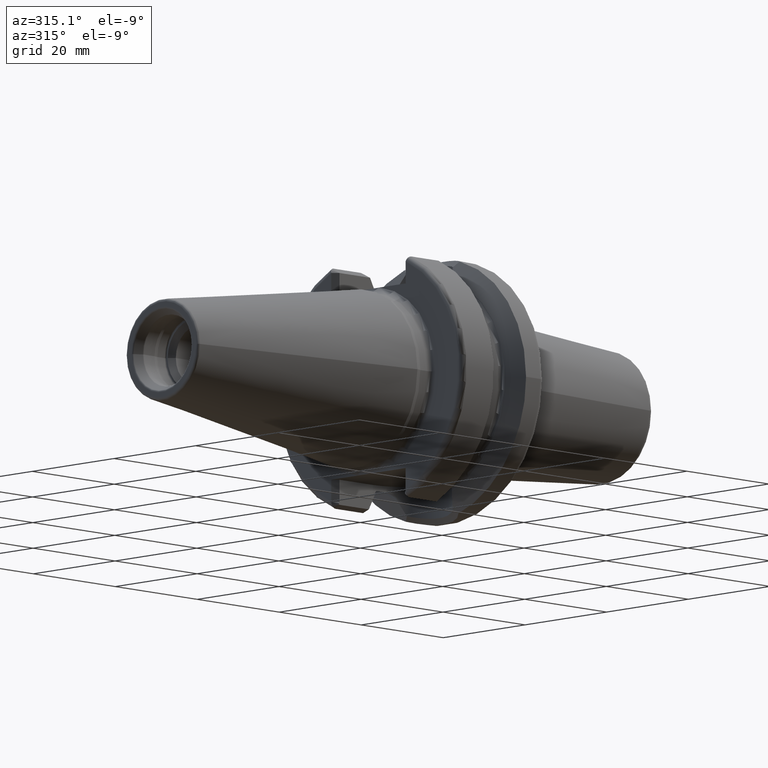
[diagram: clean part render]
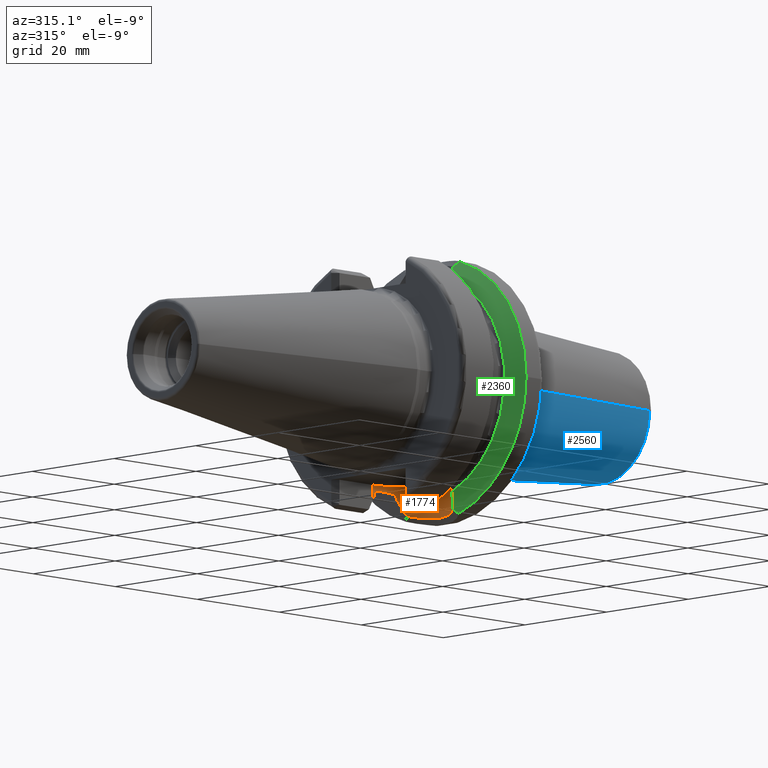
[diagram: same view with three faces highlighted in distinct colors, each labeled with its STEP entity id]
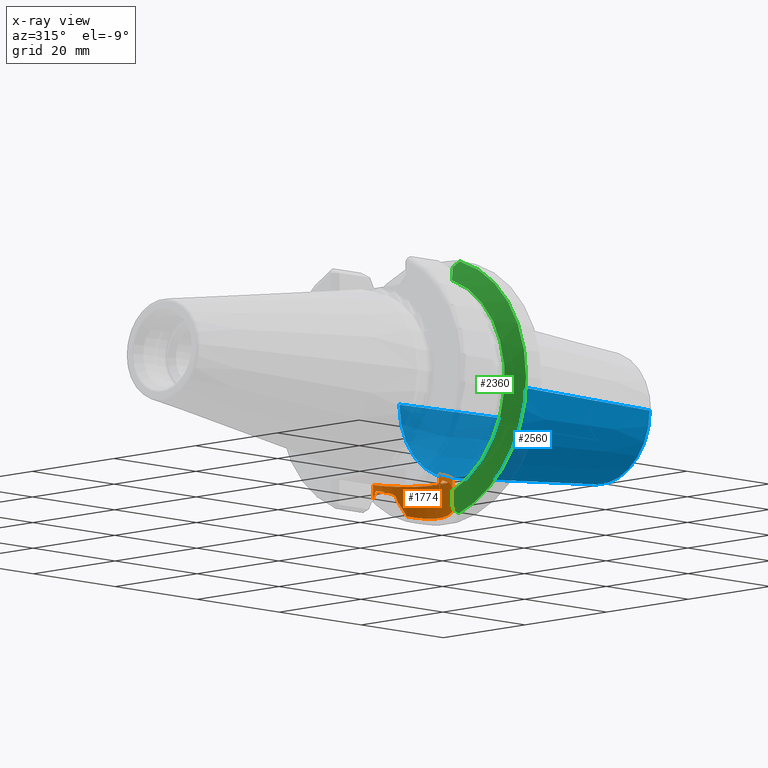
[diagram: x-ray of the same camera — body ghosted, the three highlighted faces saturated]
A machine part, auxiliary view with three faces highlighted in distinct colors.
The next image is the same camera in x-ray (body ghosted, the three faces saturated) — at least one of them is partly hidden behind the body in this view.
Their STEP definitions:

[orange] entity #1774 — the highlighted cylindrical surface (partial cylindrical patch) has radius 8.095 mm, axis along (0, 0, 1).
#155=CARTESIAN_POINT('',(1.1155E1,8.095E0,-1.870865212813E1));
#176=DIRECTION('',(-1.110807878800E-14,0.E0,-1.E0));
#177=VECTOR('',#176,2.558652128134E0);
#178=CARTESIAN_POINT('',(1.1155E1,8.095E0,-1.615E1));
#179=LINE('',#178,#177);
#272=CARTESIAN_POINT('',(1.1155E1,-8.095E0,-1.870865212813E1));
#297=DIRECTION('',(0.E0,6.173861792538E-14,1.E0));
#298=VECTOR('',#297,5.754443164074E-2);
#299=CARTESIAN_POINT('',(1.56375E1,-6.740639342822E0,-1.848861619239E1));
#300=LINE('',#299,#298);
#301=CARTESIAN_POINT('',(1.698654743284E1,-5.614452737227E0,-2.128773692951E1));
#302=CARTESIAN_POINT('',(1.685107103184E1,-5.755167619944E0,-2.100794867350E1));
#303=CARTESIAN_POINT('',(1.657018228212E1,-6.026536433094E0,-2.042717096589E1));
#304=CARTESIAN_POINT('',(1.612019321532E1,-6.402407747302E0,-1.949400229719E1));
#305=CARTESIAN_POINT('',(1.580140145437E1,-6.631645487516E0,-1.883051788112E1));
#306=CARTESIAN_POINT('',(1.56375E1,-6.740639342822E0,-1.848861619239E1));
#308=CARTESIAN_POINT('',(1.698654743284E1,-5.614452737227E0,-2.128773692951E1));
#309=CARTESIAN_POINT('',(1.725063743228E1,-5.340108090401E0,-2.135595013368E1));
#310=CARTESIAN_POINT('',(1.782443049317E1,-4.652101554192E0,-2.151555315723E1));
#311=CARTESIAN_POINT('',(1.852164438686E1,-3.464120722762E0,-2.173526750935E1));
#312=CARTESIAN_POINT('',(1.902310807991E1,-2.080071241475E0,-2.190797775080E1));
#313=CARTESIAN_POINT('',(1.926340365381E1,-6.646500112214E-1,
-2.199483960539E1));
#314=CARTESIAN_POINT('',(1.925769142436E1,7.314785348788E-1,-2.199274443856E1));
#315=CARTESIAN_POINT('',(1.900545430163E1,2.146048848966E0,-2.190170086664E1));
#316=CARTESIAN_POINT('',(1.849176503537E1,3.527222211652E0,-2.172534672513E1));
#317=CARTESIAN_POINT('',(1.779530800371E1,4.690623287524E0,-2.150701760566E1));
#318=CARTESIAN_POINT('',(1.723372138363E1,5.357667346746E0,-2.135159936151E1));
#319=CARTESIAN_POINT('',(1.698655422750E1,5.614445679829E0,-2.128775096196E1));
#321=CARTESIAN_POINT('',(1.56375E1,6.740639342822E0,-1.848861619239E1));
#322=CARTESIAN_POINT('',(1.580141693669E1,6.631635191826E0,-1.883055017756E1));
#323=CARTESIAN_POINT('',(1.612022880799E1,6.402379286160E0,-1.949407617939E1));
#324=CARTESIAN_POINT('',(1.657016835682E1,6.026547681230E0,-2.042714206942E1));
#325=CARTESIAN_POINT('',(1.685106915981E1,5.755169905209E0,-2.100794481881E1));
#326=CARTESIAN_POINT('',(1.698655422750E1,5.614445679829E0,-2.128775096196E1));
#328=DIRECTION('',(0.E0,3.086930896270E-14,1.E0));
#329=VECTOR('',#328,5.754443164072E-2);
#330=CARTESIAN_POINT('',(1.56375E1,6.740639342822E0,-1.848861619239E1));
#331=LINE('',#330,#329);
#332=CARTESIAN_POINT('',(1.48875E1,7.183137806697E0,-1.745474595203E1));
#333=CARTESIAN_POINT('',(1.497069018136E1,7.139910548601E0,-1.747253523139E1));
#334=CARTESIAN_POINT('',(1.512704810528E1,7.055150292263E0,-1.753488060805E1));
#335=CARTESIAN_POINT('',(1.534731396602E1,6.926140003427E0,-1.771001150802E1));
#336=CARTESIAN_POINT('',(1.551373210350E1,6.821933350112E0,-1.793618747596E1));
#337=CARTESIAN_POINT('',(1.561720305768E1,6.754232932078E0,-1.819382523887E1));
#338=CARTESIAN_POINT('',(1.56375E1,6.740639342822E0,-1.835229604119E1));
#339=CARTESIAN_POINT('',(1.56375E1,6.740639342822E0,-1.843107176075E1));
#341=CARTESIAN_POINT('',(1.15625E1,8.084736776791E0,-1.788232804335E1));
#342=CARTESIAN_POINT('',(1.15625E1,8.084736776791E0,-1.781359730062E1));
#343=CARTESIAN_POINT('',(1.157743606483E1,8.084008713788E0,-1.768050385507E1));
#344=CARTESIAN_POINT('',(1.164702451808E1,8.080196327678E0,-1.748544180816E1));
#345=CARTESIAN_POINT('',(1.175695528065E1,8.072931861565E0,-1.732053584298E1));
#346=CARTESIAN_POINT('',(1.190535493158E1,8.060719513235E0,-1.718877876759E1));
#347=CARTESIAN_POINT('',(1.208874148617E1,8.041810725138E0,-1.710274000837E1));
#348=CARTESIAN_POINT('',(1.223427404262E1,8.023119067298E0,-1.708494487053E1));
#349=CARTESIAN_POINT('',(1.23125E1,8.011817443627E0,-1.709024301319E1));
#351=DIRECTION('',(0.E0,5.990629765648E-14,1.E0));
#352=VECTOR('',#351,5.930451084080E-2);
#353=CARTESIAN_POINT('',(1.15625E1,8.084736776791E0,-1.794163255419E1));
#354=LINE('',#353,#352);
#355=CARTESIAN_POINT('',(1.1155E1,8.095E0,-1.870865212813E1));
#356=CARTESIAN_POINT('',(1.122320683725E1,8.095E0,-1.857992980697E1));
#357=CARTESIAN_POINT('',(1.135933197530E1,8.093276167010E0,-1.832335661175E1));
#358=CARTESIAN_POINT('',(1.149487499855E1,8.088145321664E0,-1.806856911534E1));
#359=CARTESIAN_POINT('',(1.15625E1,8.084736776791E0,-1.794163255419E1));
#361=DIRECTION('',(0.E0,0.E0,-1.E0));
#362=VECTOR('',#361,2.558652128134E0);
#363=CARTESIAN_POINT('',(1.1155E1,-8.095E0,-1.615E1));
#364=LINE('',#363,#362);
#365=CARTESIAN_POINT('',(1.15625E1,-8.084736776791E0,-1.794163255419E1));
#366=CARTESIAN_POINT('',(1.149487170181E1,-8.088145487832E0,-1.806857530355E1));
#367=CARTESIAN_POINT('',(1.135932539469E1,-8.093276332983E0,-1.832336899895E1));
#368=CARTESIAN_POINT('',(1.122320355344E1,-8.095E0,-1.857993600428E1));
#369=CARTESIAN_POINT('',(1.1155E1,-8.095E0,-1.870865212813E1));
#371=DIRECTION('',(0.E0,0.E0,1.E0));
#372=VECTOR('',#371,5.930451084078E-2);
#373=CARTESIAN_POINT('',(1.15625E1,-8.084736776791E0,-1.794163255419E1));
#374=LINE('',#373,#372);
#375=CARTESIAN_POINT('',(1.23125E1,-8.011817443627E0,-1.709024301319E1));
#376=CARTESIAN_POINT('',(1.223412033661E1,-8.023141273833E0,-1.708493446022E1));
#377=CARTESIAN_POINT('',(1.208831797670E1,-8.041863754075E0,-1.710280413489E1));
#378=CARTESIAN_POINT('',(1.190448533030E1,-8.060802307436E0,-1.718929563694E1));
#379=CARTESIAN_POINT('',(1.175607673362E1,-8.072995940587E0,-1.732154273478E1));
#380=CARTESIAN_POINT('',(1.164652640216E1,-8.080224902242E0,-1.748652481923E1));
#381=CARTESIAN_POINT('',(1.157735932460E1,-8.084012208743E0,-1.768105664530E1));
#382=CARTESIAN_POINT('',(1.15625E1,-8.084736776791E0,-1.781380327923E1));
#383=CARTESIAN_POINT('',(1.15625E1,-8.084736776791E0,-1.788232804335E1));
#385=CARTESIAN_POINT('',(1.56375E1,-6.740639342822E0,-1.843107176075E1));
#386=CARTESIAN_POINT('',(1.56375E1,-6.740639342822E0,-1.835223565973E1));
#387=CARTESIAN_POINT('',(1.561716943487E1,-6.754255410016E0,-1.819368091113E1));
#388=CARTESIAN_POINT('',(1.551365732971E1,-6.821981327071E0,-1.793606136907E1));
#389=CARTESIAN_POINT('',(1.534724837083E1,-6.926179270024E0,-1.770995100299E1));
#390=CARTESIAN_POINT('',(1.512702377767E1,-7.055163449183E0,-1.753487145852E1));
#391=CARTESIAN_POINT('',(1.497068250850E1,-7.139914535566E0,-1.747253359064E1));
#392=CARTESIAN_POINT('',(1.48875E1,-7.183137806697E0,-1.745474595203E1));
#419=CARTESIAN_POINT('',(1.23125E1,8.011817443627E0,-1.709024301319E1));
#420=CARTESIAN_POINT('',(1.260448853217E1,7.969632667405E0,-1.711001901788E1));
#421=CARTESIAN_POINT('',(1.318480954598E1,7.853460451226E0,-1.716416337693E1));
#422=CARTESIAN_POINT('',(1.404920492439E1,7.578313334037E0,-1.728803651447E1));
#423=CARTESIAN_POINT('',(1.461036501125E1,7.327142609799E0,-1.739548376922E1));
#424=CARTESIAN_POINT('',(1.48875E1,7.183137806697E0,-1.745474595203E1));
#433=CARTESIAN_POINT('',(1.48875E1,-7.183137806697E0,-1.745474595203E1));
#434=CARTESIAN_POINT('',(1.461036501125E1,-7.327142609799E0,-1.739548376922E1));
#435=CARTESIAN_POINT('',(1.404920492439E1,-7.578313334037E0,-1.728803651447E1));
#436=CARTESIAN_POINT('',(1.318480954598E1,-7.853460451226E0,-1.716416337693E1));
#437=CARTESIAN_POINT('',(1.260448853217E1,-7.969632667405E0,-1.711001901788E1));
#438=CARTESIAN_POINT('',(1.23125E1,-8.011817443627E0,-1.709024301319E1));
#744=CARTESIAN_POINT('',(1.1155E1,0.E0,-1.615E1));
#745=DIRECTION('',(0.E0,0.E0,1.E0));
#746=DIRECTION('',(0.E0,-1.E0,0.E0));
#747=AXIS2_PLACEMENT_3D('',#744,#745,#746);
#1146=CARTESIAN_POINT('',(1.15625E1,-8.084736776791E0,-1.788232804335E1));
#1148=VERTEX_POINT('',#1146);
#1151=CARTESIAN_POINT('',(1.15625E1,8.084736776791E0,-1.788232804335E1));
#1153=VERTEX_POINT('',#1151);
#1154=CARTESIAN_POINT('',(1.23125E1,-8.011817443627E0,-1.709024301319E1));
#1156=VERTEX_POINT('',#1154);
#1159=CARTESIAN_POINT('',(1.23125E1,8.011817443627E0,-1.709024301319E1));
#1161=VERTEX_POINT('',#1159);
#1163=CARTESIAN_POINT('',(1.56375E1,-6.740639342822E0,-1.843107176075E1));
#1165=VERTEX_POINT('',#1163);
#1166=CARTESIAN_POINT('',(1.48875E1,-7.183137806697E0,-1.745474595203E1));
#1168=VERTEX_POINT('',#1166);
#1171=CARTESIAN_POINT('',(1.48875E1,7.183137806697E0,-1.745474595203E1));
#1173=VERTEX_POINT('',#1171);
#1174=CARTESIAN_POINT('',(1.56375E1,6.740639342822E0,-1.843107176075E1));
#1176=VERTEX_POINT('',#1174);
#1179=CARTESIAN_POINT('',(1.56375E1,6.740639342822E0,-1.848861619239E1));
#1181=VERTEX_POINT('',#1179);
#1182=CARTESIAN_POINT('',(1.56375E1,-6.740639342822E0,-1.848861619239E1));
#1184=VERTEX_POINT('',#1182);
#1186=CARTESIAN_POINT('',(1.15625E1,8.084736776791E0,-1.794163255419E1));
#1188=VERTEX_POINT('',#1186);
#1191=CARTESIAN_POINT('',(1.15625E1,-8.084736776791E0,-1.794163255419E1));
#1193=VERTEX_POINT('',#1191);
#1284=CARTESIAN_POINT('',(1.1155E1,-8.095E0,-1.615E1));
#1285=CARTESIAN_POINT('',(1.1155E1,8.095E0,-1.615E1));
#1286=VERTEX_POINT('',#1284);
#1287=VERTEX_POINT('',#1285);
#1299=VERTEX_POINT('',#155);
#1300=VERTEX_POINT('',#272);
#1302=VERTEX_POINT('',#301);
#1303=VERTEX_POINT('',#326);
#1735=CARTESIAN_POINT('',(1.1155E1,0.E0,-1.615E1));
#1736=DIRECTION('',(0.E0,0.E0,1.E0));
#1737=DIRECTION('',(1.E0,0.E0,0.E0));
#1738=AXIS2_PLACEMENT_3D('',#1735,#1736,#1737);
#1739=CYLINDRICAL_SURFACE('',#1738,8.095E0);
#1741=ORIENTED_EDGE('',*,*,#1740,.F.);
#1743=ORIENTED_EDGE('',*,*,#1742,.F.);
#1745=ORIENTED_EDGE('',*,*,#1744,.T.);
#1747=ORIENTED_EDGE('',*,*,#1746,.F.);
#1749=ORIENTED_EDGE('',*,*,#1748,.T.);
#1751=ORIENTED_EDGE('',*,*,#1750,.F.);
#1753=ORIENTED_EDGE('',*,*,#1752,.F.);
#1755=ORIENTED_EDGE('',*,*,#1754,.F.);
#1757=ORIENTED_EDGE('',*,*,#1756,.F.);
#1758=ORIENTED_EDGE('',*,*,#1616,.F.);
#1759=ORIENTED_EDGE('',*,*,#1601,.F.);
#1761=ORIENTED_EDGE('',*,*,#1760,.F.);
#1762=ORIENTED_EDGE('',*,*,#1723,.T.);
#1763=ORIENTED_EDGE('',*,*,#1636,.F.);
#1765=ORIENTED_EDGE('',*,*,#1764,.T.);
#1767=ORIENTED_EDGE('',*,*,#1766,.F.);
#1769=ORIENTED_EDGE('',*,*,#1768,.F.);
#1771=ORIENTED_EDGE('',*,*,#1770,.F.);
#1772=EDGE_LOOP('',(#1741,#1743,#1745,#1747,#1749,#1751,#1753,#1755,#1757,#1758,
#1759,#1761,#1762,#1763,#1765,#1767,#1769,#1771));
#1773=FACE_OUTER_BOUND('',#1772,.F.);
#1774=ADVANCED_FACE('',(#1773),#1739,.F.);
#307=B_SPLINE_CURVE_WITH_KNOTS('',3,(#301,#302,#303,#304,#305,#306),
.UNSPECIFIED.,.F.,.F.,(4,1,1,4),(0.E0,3.333333333333E-1,6.666666666667E-1,1.E0),
.UNSPECIFIED.);
#320=B_SPLINE_CURVE_WITH_KNOTS('',3,(#308,#309,#310,#311,#312,#313,#314,#315,
#316,#317,#318,#319),.UNSPECIFIED.,.F.,.F.,(4,1,1,1,1,1,1,1,1,4),(0.E0,
8.680513771483E-2,2.056506064695E-1,3.244960752242E-1,4.433415439789E-1,
5.621870127336E-1,6.810324814883E-1,7.998779502430E-1,9.187234189976E-1,1.E0),
.UNSPECIFIED.);
#327=B_SPLINE_CURVE_WITH_KNOTS('',3,(#321,#322,#323,#324,#325,#326),
.UNSPECIFIED.,.F.,.F.,(4,1,1,4),(0.E0,3.333333333333E-1,6.666666666667E-1,1.E0),
.UNSPECIFIED.);
#340=B_SPLINE_CURVE_WITH_KNOTS('',3,(#332,#333,#334,#335,#336,#337,#338,#339),
.UNSPECIFIED.,.F.,.F.,(4,1,1,1,1,4),(0.E0,2.E-1,4.E-1,6.E-1,8.E-1,1.E0),
.UNSPECIFIED.);
#350=B_SPLINE_CURVE_WITH_KNOTS('',3,(#341,#342,#343,#344,#345,#346,#347,#348,
#349),.UNSPECIFIED.,.F.,.F.,(4,1,1,1,1,1,4),(0.E0,1.666666666667E-1,
3.333333333333E-1,5.E-1,6.666666666667E-1,8.333333333333E-1,1.E0),
.UNSPECIFIED.);
#360=B_SPLINE_CURVE_WITH_KNOTS('',3,(#355,#356,#357,#358,#359),.UNSPECIFIED.,
.F.,.F.,(4,1,4),(0.E0,5.E-1,1.E0),.UNSPECIFIED.);
#370=B_SPLINE_CURVE_WITH_KNOTS('',3,(#365,#366,#367,#368,#369),.UNSPECIFIED.,
.F.,.F.,(4,1,4),(0.E0,5.E-1,1.E0),.UNSPECIFIED.);
#384=B_SPLINE_CURVE_WITH_KNOTS('',3,(#375,#376,#377,#378,#379,#380,#381,#382,
#383),.UNSPECIFIED.,.F.,.F.,(4,1,1,1,1,1,4),(0.E0,1.666666666667E-1,
3.333333333333E-1,5.E-1,6.666666666667E-1,8.333333333333E-1,1.E0),
.UNSPECIFIED.);
#393=B_SPLINE_CURVE_WITH_KNOTS('',3,(#385,#386,#387,#388,#389,#390,#391,#392),
.UNSPECIFIED.,.F.,.F.,(4,1,1,1,1,4),(0.E0,2.E-1,4.E-1,6.E-1,8.E-1,1.E0),
.UNSPECIFIED.);
#425=B_SPLINE_CURVE_WITH_KNOTS('',3,(#419,#420,#421,#422,#423,#424),
.UNSPECIFIED.,.F.,.F.,(4,1,1,4),(0.E0,3.333333333333E-1,6.666666666667E-1,1.E0),
.UNSPECIFIED.);
#439=B_SPLINE_CURVE_WITH_KNOTS('',3,(#433,#434,#435,#436,#437,#438),
.UNSPECIFIED.,.F.,.F.,(4,1,1,4),(0.E0,3.333333333333E-1,6.666666666667E-1,1.E0),
.UNSPECIFIED.);
#748=CIRCLE('',#747,8.095E0);
#1601=EDGE_CURVE('',#1287,#1299,#179,.T.);
#1616=EDGE_CURVE('',#1299,#1188,#360,.T.);
#1636=EDGE_CURVE('',#1193,#1300,#370,.T.);
#1723=EDGE_CURVE('',#1286,#1300,#364,.T.);
#1740=EDGE_CURVE('',#1184,#1165,#300,.T.);
#1742=EDGE_CURVE('',#1302,#1184,#307,.T.);
#1744=EDGE_CURVE('',#1302,#1303,#320,.T.);
#1746=EDGE_CURVE('',#1181,#1303,#327,.T.);
#1748=EDGE_CURVE('',#1181,#1176,#331,.T.);
#1750=EDGE_CURVE('',#1173,#1176,#340,.T.);
#1752=EDGE_CURVE('',#1161,#1173,#425,.T.);
#1754=EDGE_CURVE('',#1153,#1161,#350,.T.);
#1756=EDGE_CURVE('',#1188,#1153,#354,.T.);
#1760=EDGE_CURVE('',#1286,#1287,#748,.T.);
#1764=EDGE_CURVE('',#1193,#1148,#374,.T.);
#1766=EDGE_CURVE('',#1156,#1148,#384,.T.);
#1768=EDGE_CURVE('',#1168,#1156,#439,.T.);
#1770=EDGE_CURVE('',#1165,#1168,#393,.T.);

[blue] entity #2560 — the highlighted conical surface has half-angle 4.5 deg.
#862=CARTESIAN_POINT('',(5.907845909573E1,0.E0,0.E0));
#863=DIRECTION('',(-1.E0,0.E0,0.E0));
#864=DIRECTION('',(0.E0,1.E0,0.E0));
#865=AXIS2_PLACEMENT_3D('',#862,#863,#864);
#867=DIRECTION('',(-9.969173337331E-1,7.845909572785E-2,1.792595924381E-13));
#868=VECTOR('',#867,3.534433206737E1);
#869=CARTESIAN_POINT('',(5.907845909573E1,1.157252684207E1,
-7.183203901068E-13));
#870=LINE('',#869,#868);
#871=CARTESIAN_POINT('',(2.384308180854E1,0.E0,0.E0));
#872=DIRECTION('',(1.E0,0.E0,0.E0));
#873=DIRECTION('',(0.E0,-1.E0,0.E0));
#874=AXIS2_PLACEMENT_3D('',#871,#872,#873);
#876=DIRECTION('',(-9.969173337331E-1,-7.845909572785E-2,-1.791863042911E-13));
#877=VECTOR('',#876,3.534433206737E1);
#878=CARTESIAN_POINT('',(5.907845909573E1,-1.157252684207E1,
7.153778046352E-13));
#879=LINE('',#878,#877);
#1365=CARTESIAN_POINT('',(5.907845909573E1,1.157252684207E1,0.E0));
#1366=CARTESIAN_POINT('',(5.907845909573E1,-1.157252684207E1,0.E0));
#1367=VERTEX_POINT('',#1365);
#1368=VERTEX_POINT('',#1366);
#1377=CARTESIAN_POINT('',(2.384308180854E1,-1.434561117519E1,0.E0));
#1378=CARTESIAN_POINT('',(2.384308180854E1,1.434561117519E1,0.E0));
#1379=VERTEX_POINT('',#1377);
#1380=VERTEX_POINT('',#1378);
#2549=CARTESIAN_POINT('',(4.146077045214E1,0.E0,0.E0));
#2550=DIRECTION('',(-1.E0,0.E0,0.E0));
#2551=DIRECTION('',(0.E0,1.E0,0.E0));
#2552=AXIS2_PLACEMENT_3D('',#2549,#2550,#2551);
#2553=CONICAL_SURFACE('',#2552,1.295906900863E1,4.5E0);
#2554=ORIENTED_EDGE('',*,*,#2540,.F.);
#2555=ORIENTED_EDGE('',*,*,#2515,.T.);
#2556=ORIENTED_EDGE('',*,*,#2485,.F.);
#2557=ORIENTED_EDGE('',*,*,#2512,.F.);
#2558=EDGE_LOOP('',(#2554,#2555,#2556,#2557));
#2559=FACE_OUTER_BOUND('',#2558,.F.);
#2560=ADVANCED_FACE('',(#2559),#2553,.T.);
#866=CIRCLE('',#865,1.157252684207E1);
#875=CIRCLE('',#874,1.434561117519E1);
#2485=EDGE_CURVE('',#1379,#1380,#875,.T.);
#2512=EDGE_CURVE('',#1368,#1379,#879,.T.);
#2515=EDGE_CURVE('',#1367,#1380,#870,.T.);
#2540=EDGE_CURVE('',#1367,#1368,#866,.T.);

[green] entity #2360 — the highlighted conical surface has half-angle 60 deg.
#226=CARTESIAN_POINT('',(1.754907584126E1,0.E0,0.E0));
#227=DIRECTION('',(1.E0,0.E0,0.E0));
#228=DIRECTION('',(0.E0,-1.E0,0.E0));
#229=AXIS2_PLACEMENT_3D('',#226,#227,#228);
#301=CARTESIAN_POINT('',(1.698654743284E1,-5.614452737227E0,-2.128773692951E1));
#302=CARTESIAN_POINT('',(1.685107103184E1,-5.755167619944E0,-2.100794867350E1));
#303=CARTESIAN_POINT('',(1.657018228212E1,-6.026536433094E0,-2.042717096589E1));
#304=CARTESIAN_POINT('',(1.612019321532E1,-6.402407747302E0,-1.949400229719E1));
#305=CARTESIAN_POINT('',(1.580140145437E1,-6.631645487516E0,-1.883051788112E1));
#306=CARTESIAN_POINT('',(1.56375E1,-6.740639342822E0,-1.848861619239E1));
#539=CARTESIAN_POINT('',(1.56375E1,-6.740639342822E0,1.848861619239E1));
#540=CARTESIAN_POINT('',(1.585767247034E1,-6.594225471952E0,1.894790033793E1));
#541=CARTESIAN_POINT('',(1.628171976104E1,-6.281140526994E0,1.982974129959E1));
#542=CARTESIAN_POINT('',(1.667161664884E1,-5.929979516978E0,2.063692715611E1));
#543=CARTESIAN_POINT('',(1.685763265114E1,-5.745346451357E0,2.102139504543E1));
#754=CARTESIAN_POINT('',(1.56375E1,0.E0,0.E0));
#755=DIRECTION('',(-1.E0,0.E0,0.E0));
#756=DIRECTION('',(0.E0,-3.425286351209E-1,-9.395073890727E-1));
#757=AXIS2_PLACEMENT_3D('',#754,#755,#756);
#759=CARTESIAN_POINT('',(1.754907584126E1,-6.443032679053E0,-2.206869796560E1));
#760=CARTESIAN_POINT('',(1.748456901312E1,-6.349229342496E0,-2.197969071488E1));
#761=CARTESIAN_POINT('',(1.735689008885E1,-6.162789812709E0,-2.180316770528E1));
#762=CARTESIAN_POINT('',(1.716937022838E1,-5.886595386436E0,-2.154283832910E1));
#763=CARTESIAN_POINT('',(1.704704179076E1,-5.704784930306E0,-2.137227484606E1));
#764=CARTESIAN_POINT('',(1.698654743284E1,-5.614452737227E0,-2.128773692951E1));
#783=CARTESIAN_POINT('',(1.754907584126E1,0.E0,0.E0));
#784=DIRECTION('',(1.E0,0.E0,0.E0));
#785=DIRECTION('',(0.E0,-2.941213407634E-1,9.557680874080E-1));
#786=AXIS2_PLACEMENT_3D('',#783,#784,#785);
#925=CARTESIAN_POINT('',(1.685763265114E1,-5.745346451357E0,2.102139504543E1));
#926=CARTESIAN_POINT('',(1.693144167990E1,-5.855715160872E0,2.112375997325E1));
#927=CARTESIAN_POINT('',(1.708107453051E1,-6.078150083564E0,2.133074220340E1));
#928=CARTESIAN_POINT('',(1.731157671337E1,-6.416980815637E0,2.164800022547E1));
#929=CARTESIAN_POINT('',(1.746924261241E1,-6.646311278969E0,2.186398885076E1));
#930=CARTESIAN_POINT('',(1.754907584126E1,-6.761849624151E0,2.197310832951E1));
#1182=CARTESIAN_POINT('',(1.56375E1,-6.740639342822E0,-1.848861619239E1));
#1183=CARTESIAN_POINT('',(1.56375E1,-6.740639342822E0,1.848861619239E1));
#1184=VERTEX_POINT('',#1182);
#1185=VERTEX_POINT('',#1183);
#1198=CARTESIAN_POINT('',(1.754907584126E1,-2.299E1,0.E0));
#1199=CARTESIAN_POINT('',(1.754907584126E1,-6.443032679053E0,
-2.206869796560E1));
#1200=VERTEX_POINT('',#1198);
#1201=VERTEX_POINT('',#1199);
#1206=CARTESIAN_POINT('',(1.754907584126E1,-6.761849624151E0,2.197310832951E1));
#1207=VERTEX_POINT('',#1206);
#1296=VERTEX_POINT('',#543);
#1302=VERTEX_POINT('',#301);
#2343=CARTESIAN_POINT('',(1.659328792063E1,0.E0,0.E0));
#2344=DIRECTION('',(1.E0,0.E0,0.E0));
#2345=DIRECTION('',(0.E0,-1.E0,0.E0));
#2346=AXIS2_PLACEMENT_3D('',#2343,#2344,#2345);
#2347=CONICAL_SURFACE('',#2346,2.133452676021E1,6.E1);
#2349=ORIENTED_EDGE('',*,*,#2348,.T.);
#2350=ORIENTED_EDGE('',*,*,#1688,.T.);
#2352=ORIENTED_EDGE('',*,*,#2351,.T.);
#2353=ORIENTED_EDGE('',*,*,#1742,.T.);
#2354=ORIENTED_EDGE('',*,*,#1799,.T.);
#2355=ORIENTED_EDGE('',*,*,#1940,.T.);
#2357=ORIENTED_EDGE('',*,*,#2356,.T.);
#2358=EDGE_LOOP('',(#2349,#2350,#2352,#2353,#2354,#2355,#2357));
#2359=FACE_OUTER_BOUND('',#2358,.F.);
#2360=ADVANCED_FACE('',(#2359),#2347,.T.);
#230=CIRCLE('',#229,2.299E1);
#307=B_SPLINE_CURVE_WITH_KNOTS('',3,(#301,#302,#303,#304,#305,#306),
.UNSPECIFIED.,.F.,.F.,(4,1,1,4),(0.E0,3.333333333333E-1,6.666666666667E-1,1.E0),
.UNSPECIFIED.);
#544=B_SPLINE_CURVE_WITH_KNOTS('',3,(#539,#540,#541,#542,#543),.UNSPECIFIED.,
.F.,.F.,(4,1,4),(0.E0,5.E-1,1.E0),.UNSPECIFIED.);
#758=CIRCLE('',#757,1.967905352042E1);
#765=B_SPLINE_CURVE_WITH_KNOTS('',3,(#759,#760,#761,#762,#763,#764),
.UNSPECIFIED.,.F.,.F.,(4,1,1,4),(0.E0,3.333333333333E-1,6.666666666667E-1,1.E0),
.UNSPECIFIED.);
#787=CIRCLE('',#786,2.299E1);
#931=B_SPLINE_CURVE_WITH_KNOTS('',3,(#925,#926,#927,#928,#929,#930),
.UNSPECIFIED.,.F.,.F.,(4,1,1,4),(0.E0,3.333333333333E-1,6.666666666667E-1,1.E0),
.UNSPECIFIED.);
#1688=EDGE_CURVE('',#1200,#1201,#230,.T.);
#1742=EDGE_CURVE('',#1302,#1184,#307,.T.);
#1799=EDGE_CURVE('',#1184,#1185,#758,.T.);
#1940=EDGE_CURVE('',#1185,#1296,#544,.T.);
#2348=EDGE_CURVE('',#1207,#1200,#787,.T.);
#2351=EDGE_CURVE('',#1201,#1302,#765,.T.);
#2356=EDGE_CURVE('',#1296,#1207,#931,.T.);